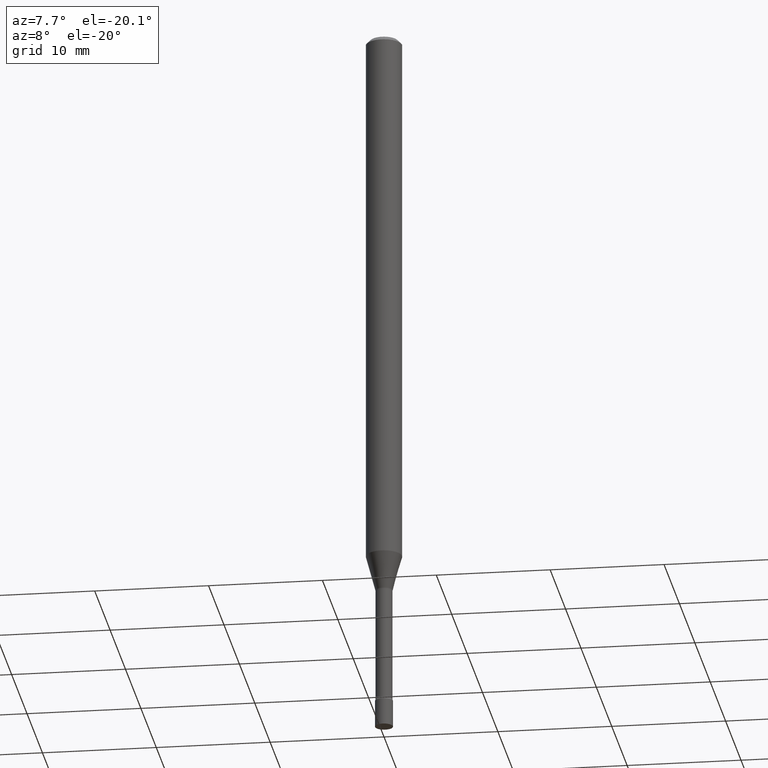
[diagram: clean part render]
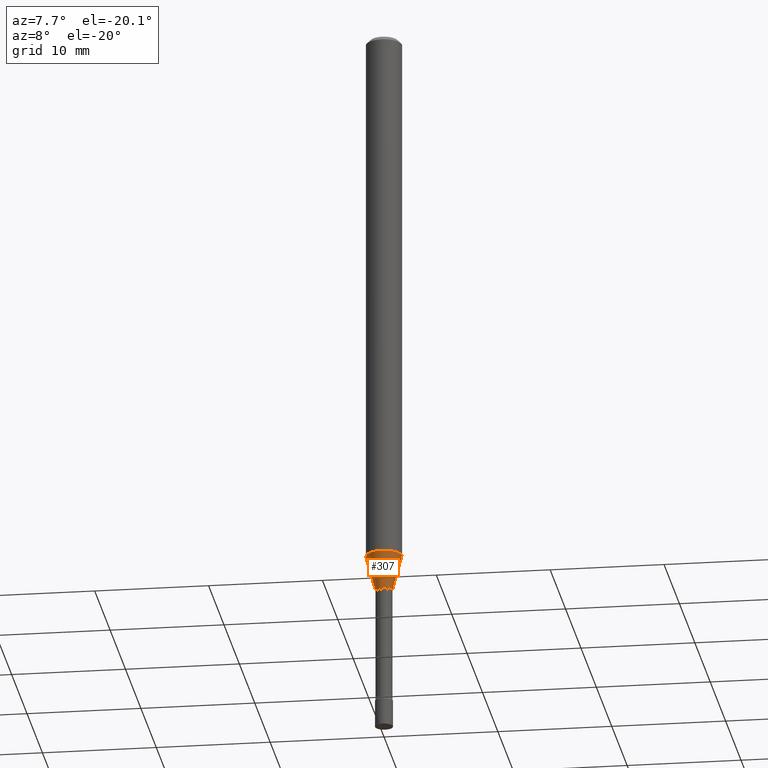
[diagram: same view with one face highlighted and labeled with its STEP entity id]
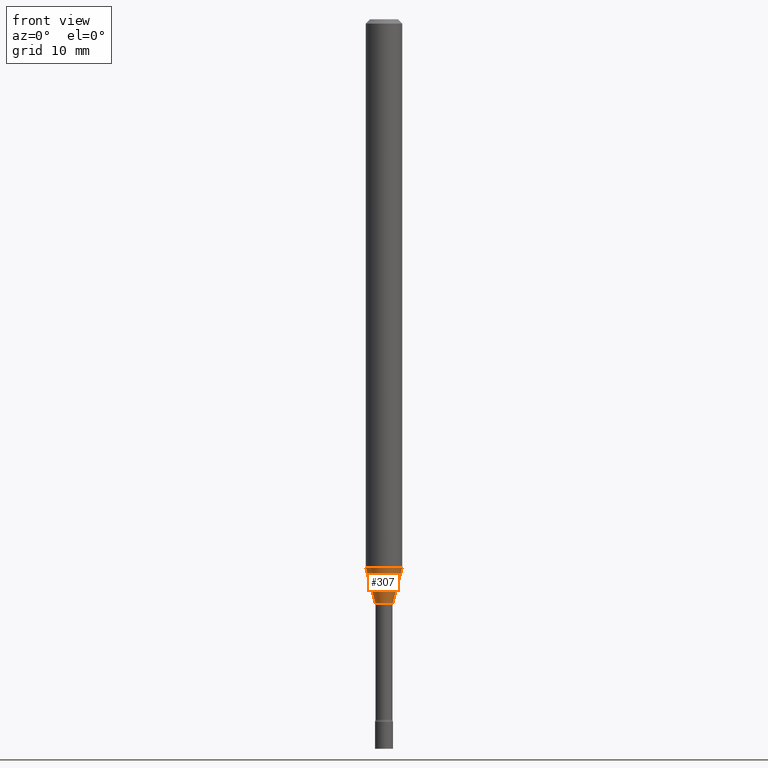
[diagram: same view with one face highlighted and labeled with its STEP entity id]
A machine part, auxiliary view. The second image highlights one B-rep face of the part: STEP entity #307.
A second angle (front view) of the same face is appended — the face is thin or edge-on in the first view.
In plain terms, the highlighted conical surface has half-angle 15 deg.
Its self-contained STEP definition (entity closure, byte-faithful):
#10 = CARTESIAN_POINT ( 'NONE',  ( 4.896054760217936554E-29, -6.990268608628051909E-15, -2.002092501787273271 ) ) ;
#27 = CARTESIAN_POINT ( 'NONE',  ( 0.02966111260566397720, -7.197391050932053160E-15, -2.002092501787273271 ) ) ;
#28 = DIRECTION ( 'NONE',  ( 1.000000000000000000, -6.982962677686269077E-15, 0.000000000000000000 ) ) ;
#36 = CIRCLE ( 'NONE', #79, 0.02966111260566397720 ) ;
#40 = CARTESIAN_POINT ( 'NONE',  ( 0.06250000000000000000, -6.998800405626513309E-15, -1.879536105567578552 ) ) ;
#45 = ORIENTED_EDGE ( 'NONE', *, *, #306, .T. ) ;
#51 = EDGE_CURVE ( 'NONE', #57, #454, #379, .T. ) ;
#55 = VERTEX_POINT ( 'NONE', #354 ) ;
#57 = VERTEX_POINT ( 'NONE', #186 ) ;
#65 = CIRCLE ( 'NONE', #259, 0.06250000000000000000 ) ;
#77 = EDGE_CURVE ( 'NONE', #55, #454, #65, .T. ) ;
#79 = AXIS2_PLACEMENT_3D ( 'NONE', #10, #172, #338 ) ;
#109 = DIRECTION ( 'NONE',  ( -2.445468806185136597E-29, 3.491481338843145583E-15, 1.000000000000000000 ) ) ;
#132 = EDGE_LOOP ( 'NONE', ( #450, #45, #228, #481 ) ) ;
#159 = CARTESIAN_POINT ( 'NONE',  ( -0.02966111260566397720, -6.779513727662883321E-15, -2.002092501787273271 ) ) ;
#172 = DIRECTION ( 'NONE',  ( -2.445468806185136597E-29, 3.491481338843145583E-15, 1.000000000000000000 ) ) ;
#186 = CARTESIAN_POINT ( 'NONE',  ( 0.02966111260566397720, -7.197391050932053160E-15, -2.002092501787273271 ) ) ;
#193 = CARTESIAN_POINT ( 'NONE',  ( 4.896054760217936554E-29, -6.990268608628051909E-15, -2.002092501787273271 ) ) ;
#224 = VECTOR ( 'NONE', #313, 39.37007874015747433 ) ;
#225 = AXIS2_PLACEMENT_3D ( 'NONE', #193, #358, #28 ) ;
#228 = ORIENTED_EDGE ( 'NONE', *, *, #51, .T. ) ;
#259 = AXIS2_PLACEMENT_3D ( 'NONE', #423, #109, #275 ) ;
#275 = DIRECTION ( 'NONE',  ( 1.000000000000000000, -6.982962677686262766E-15, 0.000000000000000000 ) ) ;
#306 = EDGE_CURVE ( 'NONE', #452, #57, #36, .T. ) ;
#307 = ADVANCED_FACE ( 'NONE', ( #449 ), #343, .T. ) ;
#313 = DIRECTION ( 'NONE',  ( 0.2588190451025214611, 1.565188264969621573E-15, 0.9659258262890682012 ) ) ;
#338 = DIRECTION ( 'NONE',  ( 1.000000000000000000, -6.982962677686269077E-15, 0.000000000000000000 ) ) ;
#343 = CONICAL_SURFACE ( 'NONE', #225, 0.02966111260566397720, 0.2617993877991501295 ) ;
#354 = CARTESIAN_POINT ( 'NONE',  ( -0.06250000000000000000, -6.118276028421058235E-15, -1.879536105567578552 ) ) ;
#358 = DIRECTION ( 'NONE',  ( -2.445468806185136597E-29, 3.491481338843145583E-15, 1.000000000000000000 ) ) ;
#379 = LINE ( 'NONE', #27, #224 ) ;
#397 = VECTOR ( 'NONE', #470, 39.37007874015747433 ) ;
#398 = CARTESIAN_POINT ( 'NONE',  ( -0.02966111260566397720, -6.448894878041971172E-15, -2.002092501787273271 ) ) ;
#423 = CARTESIAN_POINT ( 'NONE',  ( 4.596346916264206982E-29, -6.562365238271120851E-15, -1.879536105567578552 ) ) ;
#438 = LINE ( 'NONE', #159, #397 ) ;
#449 = FACE_OUTER_BOUND ( 'NONE', #132, .T. ) ;
#450 = ORIENTED_EDGE ( 'NONE', *, *, #469, .F. ) ;
#452 = VERTEX_POINT ( 'NONE', #398 ) ;
#454 = VERTEX_POINT ( 'NONE', #40 ) ;
#469 = EDGE_CURVE ( 'NONE', #452, #55, #438, .T. ) ;
#470 = DIRECTION ( 'NONE',  ( -0.2588190451025214611, 5.211531920934551042E-15, 0.9659258262890682012 ) ) ;
#481 = ORIENTED_EDGE ( 'NONE', *, *, #77, .F. ) ;